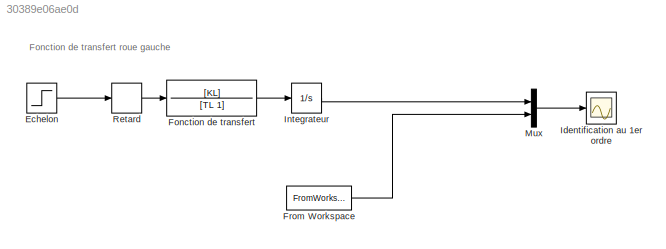
MODEL slx_30389e06ae0d
KIND model
CONFIG AbsTol = auto
CONFIG FixedStep = 0.01
CONFIG InitFcn = load('LeftOutput_Measures.mat');\nload('LeftOutput_Measures.mat');\nParametres_Rover
CONFIG MaxStep = auto
CONFIG MinStep = auto
CONFIG RelTol = 1e-3
CONFIG SampleTimeConstraint = Unconstrained
CONFIG Solver = ode3
CONFIG SolverMode = Auto
CONFIG SolverName = ode3
CONFIG StartTime = 0.0
CONFIG StopTime = 10
BLOCK [Step] Echelon
  After = 50
  SampleTime = 0
  Time = 3
BLOCK [TransferFcn] Fonction de transfert
  Denominator = [TL 1]
  Numerator = [KL]
BLOCK [FromWorkspace] From Workspace
  SampleTime = 0
  VariableName = LeftOutput
  ZeroCross = on
BLOCK [Scope] Identification au 1er ordre
  Floating = off
  NumInputPorts = 1
  Ports = [1]
  YMax = 12000
  YMin = -2000
BLOCK [Integrator] Integrateur
  Ports = [1, 1]
BLOCK [Mux] Mux
  DisplayOption = bar
  Inputs = 2
  Ports = [2, 1]
BLOCK [TransportDelay] Retard
  DelayTime = TdL
  Ports = [1, 1]
ANNOTATION (root): Fonction de transfert roue gauche
LINE Echelon:1 -> Retard:1
LINE Fonction de transfert:1 -> Integrateur:1
LINE From Workspace:1 -> Mux:2
LINE Integrateur:1 -> Mux:1
LINE Mux:1 -> Identification au 1er ordre:1
LINE Retard:1 -> Fonction de transfert:1
